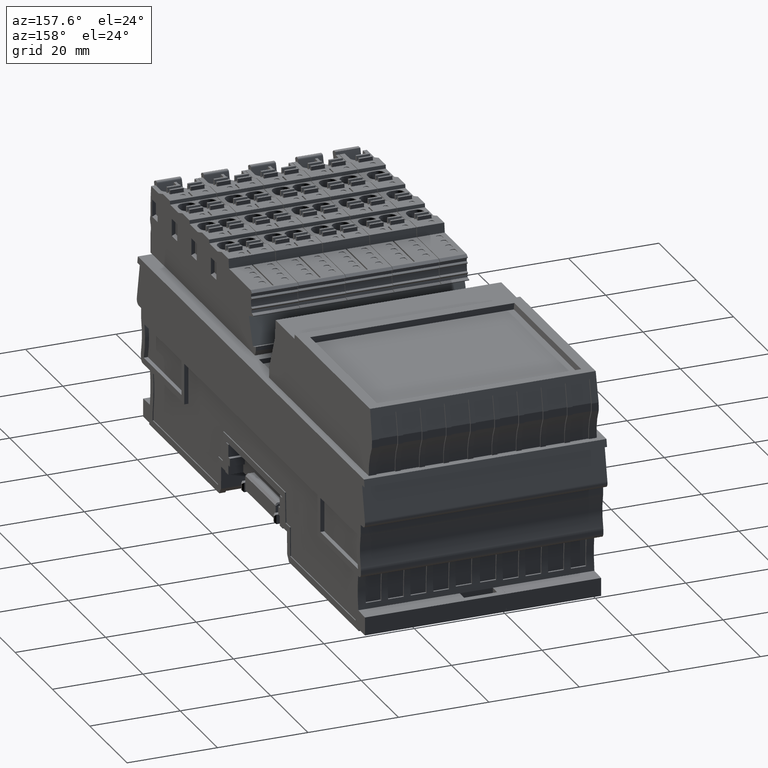
[diagram: clean part render]
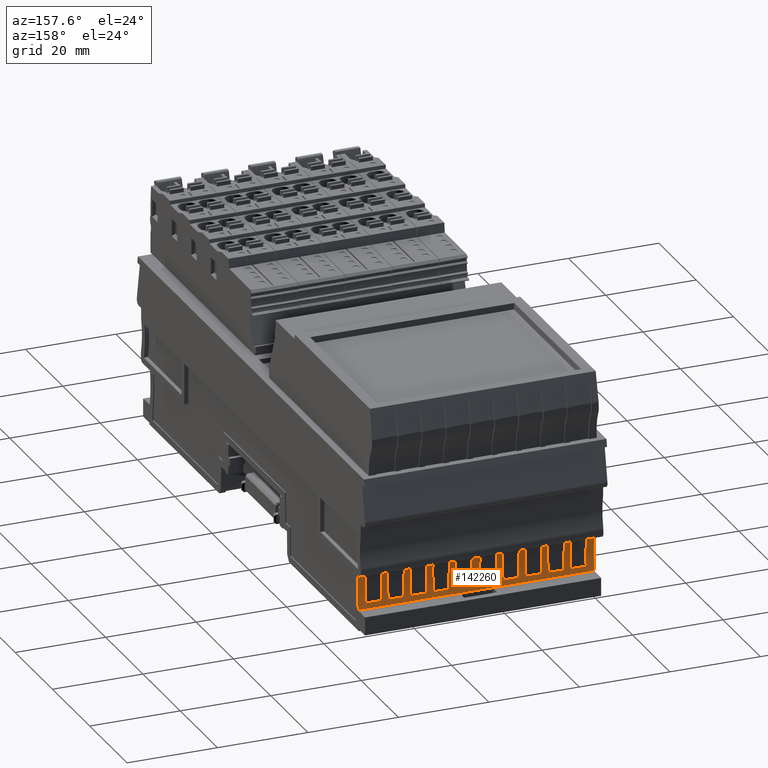
[diagram: same view with one face highlighted and labeled with its STEP entity id]
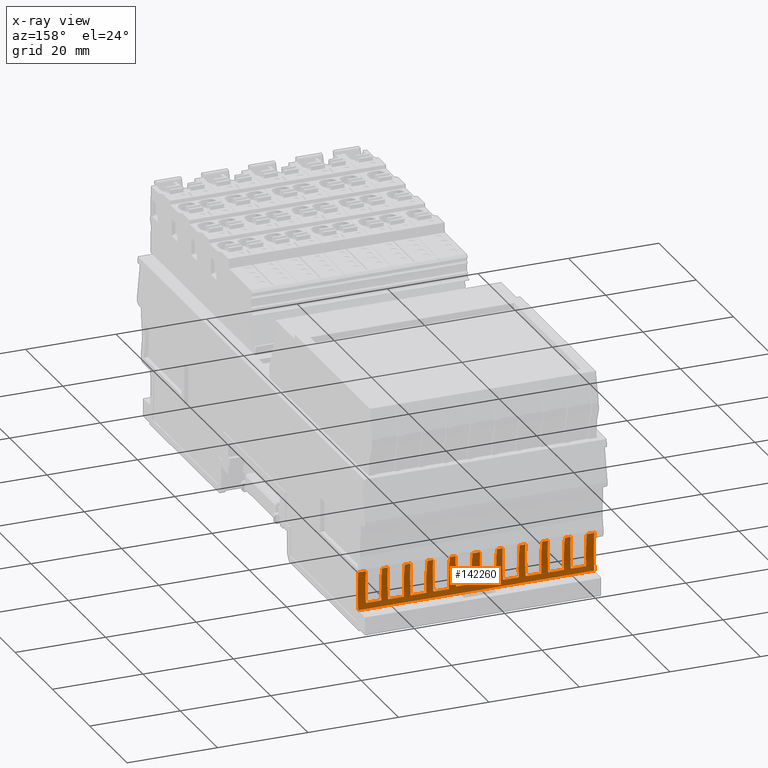
[diagram: x-ray of the same camera — body ghosted, the highlighted face saturated]
A machine part, auxiliary view. The second image highlights one B-rep face of the part: STEP entity #142260.
The next image is the same camera in x-ray: the body ghosted, the highlighted face saturated — about 0% of this face is hidden behind the body in this view.
In plain terms, the highlighted cylindrical surface (partial cylindrical patch) has radius 32 mm, axis along (1, -0, -0).
Its self-contained STEP definition (entity closure, byte-faithful):
#91180=CARTESIAN_POINT('',(110.903735656743,15.563936906881,
-34.0125851546365));
#91190=DIRECTION('',(-0.00212691339900759,0.0173223188362322,
-0.999847695156382));
#91200=DIRECTION('',(-0.121850787229782,0.992394981426756,
0.0174524064378229));
#91210=AXIS2_PLACEMENT_3D('',#91180,#91190,#91200);
#91220=ELLIPSE('',#91210,32.0048744974054,32.);
#91230=CARTESIAN_POINT('',(79.626375780575,8.80178050698401,
-34.0632048576358));
#91240=VERTEX_POINT('',#91230);
#91250=CARTESIAN_POINT('',(78.9062796824759,15.9674355746103,
-33.9375283727069));
#91260=VERTEX_POINT('',#91250);
#91270=EDGE_CURVE('',#91240,#91260,#91220,.T.);
#92640=CARTESIAN_POINT('',(79.5641304898053,9.09639116046415,
-27.5420316461985));
#92650=VERTEX_POINT('',#92640);
#92680=CARTESIAN_POINT('',(79.5641304899061,9.09639116048578,
-55.260002400555));
#92690=DIRECTION('',(-3.71422913355509E-12,-4.00157385418018E-13,1.));
#92700=VECTOR('',#92690,1.);
#92710=LINE('',#92680,#92700);
#92720=CARTESIAN_POINT('',(79.5641304897922,9.09639116046274,
-24.0125913893579));
#92730=VERTEX_POINT('',#92720);
#92740=EDGE_CURVE('',#92650,#92730,#92710,.T.);
#92980=CARTESIAN_POINT('',(110.903735656706,15.5639369068769,
-23.9899015279319));
#92990=DIRECTION('',(-0.00106349713636494,0.00866148922819657,
-0.999961923064169));
#93000=DIRECTION('',(0.121864701693652,-0.992508358684857,
-0.00872653549865132));
#93010=AXIS2_PLACEMENT_3D('',#92980,#92990,#93000);
#93020=ELLIPSE('',#93010,32.0012185083437,32.);
#93030=CARTESIAN_POINT('',(78.9062796824388,15.9674355746063,
-23.952375996911));
#93040=VERTEX_POINT('',#93030);
#93050=EDGE_CURVE('',#92730,#93040,#93020,.T.);
#93300=CARTESIAN_POINT('',(79.6263757806532,8.80178050699476,
-55.2600024005548));
#93310=DIRECTION('',(-3.71422913355509E-12,-4.00157385418018E-13,1.));
#93320=VECTOR('',#93310,1.);
#93330=LINE('',#93300,#93320);
#93340=CARTESIAN_POINT('',(79.6263757806073,8.8017805069837,
-42.5367951220103));
#93350=VERTEX_POINT('',#93340);
#93360=CARTESIAN_POINT('',(79.6263757805944,8.80178050698231,
-39.0632048576355));
#93370=VERTEX_POINT('',#93360);
#93380=EDGE_CURVE('',#93350,#93370,#93330,.T.);
#93770=CARTESIAN_POINT('',(110.903735656762,15.563936906883,
-39.0125851546362));
#93780=DIRECTION('',(-0.00212691339900759,0.0173223188362322,
-0.999847695156382));
#93790=DIRECTION('',(-0.121850787229782,0.992394981426756,
0.0174524064378229));
#93800=AXIS2_PLACEMENT_3D('',#93770,#93780,#93790);
#93810=ELLIPSE('',#93800,32.0048744974054,32.);
#93820=CARTESIAN_POINT('',(78.9062796824945,15.9674355746123,
-38.9375283727065));
#93830=VERTEX_POINT('',#93820);
#93840=EDGE_CURVE('',#93370,#93830,#93810,.T.);
#94460=CARTESIAN_POINT('',(78.9062796825326,15.9674355746164,
-49.1999999990493));
#94470=VERTEX_POINT('',#94460);
#94500=CARTESIAN_POINT('',(78.9062796825551,15.9674355746188,
-55.2600024005546));
#94510=DIRECTION('',(-3.71422913355509E-12,-4.00157385418018E-13,1.));
#94520=VECTOR('',#94510,1.);
#94530=LINE('',#94500,#94520);
#94540=CARTESIAN_POINT('',(78.9062796825263,15.9674355746157,
-47.5083678773095));
#94550=VERTEX_POINT('',#94540);
#94560=EDGE_CURVE('',#94470,#94550,#94530,.T.);
#94780=CARTESIAN_POINT('',(78.906279682513,15.9674355746143,
-43.9375283489985));
#94790=VERTEX_POINT('',#94780);
#94820=CARTESIAN_POINT('',(78.9062796825551,15.9674355746188,
-55.2600024005546));
#94830=DIRECTION('',(-3.71422913355509E-12,-4.00157385418018E-13,1.));
#94840=VECTOR('',#94830,1.);
#94850=LINE('',#94820,#94840);
#94860=CARTESIAN_POINT('',(78.9062796825083,15.9674355746138,
-42.6624716069432));
#94870=VERTEX_POINT('',#94860);
#94880=EDGE_CURVE('',#94790,#94870,#94850,.T.);
#95050=CARTESIAN_POINT('',(78.9062796825551,15.9674355746188,
-55.2600024005546));
#95060=DIRECTION('',(-3.71422913355509E-12,-4.00157385418018E-13,1.));
#95070=VECTOR('',#95060,1.);
#95080=LINE('',#95050,#95070);
#95090=CARTESIAN_POINT('',(78.9062796824897,15.9674355746118,
-37.6624716306536));
#95100=VERTEX_POINT('',#95090);
#95110=EDGE_CURVE('',#93830,#95100,#95080,.T.);
#95280=CARTESIAN_POINT('',(78.9062796825551,15.9674355746188,
-55.2600024005546));
#95290=DIRECTION('',(-3.71422913355509E-12,-4.00157385418018E-13,1.));
#95300=VECTOR('',#95290,1.);
#95310=LINE('',#95280,#95300);
#95320=CARTESIAN_POINT('',(78.9062796824712,15.9674355746098,
-32.6624716306533));
#95330=VERTEX_POINT('',#95320);
#95340=EDGE_CURVE('',#91260,#95330,#95310,.T.);
#95560=CARTESIAN_POINT('',(78.9062796824573,15.9674355746083,
-28.9375283493225));
#95570=VERTEX_POINT('',#95560);
#95600=CARTESIAN_POINT('',(78.9062796825551,15.9674355746188,
-55.2600024005546));
#95610=DIRECTION('',(-3.71422913355509E-12,-4.00157385418018E-13,1.));
#95620=VECTOR('',#95610,1.);
#95630=LINE('',#95600,#95620);
#95640=CARTESIAN_POINT('',(78.9062796824526,15.9674355746078,
-27.6624716035652));
#95650=VERTEX_POINT('',#95640);
#95660=EDGE_CURVE('',#95570,#95650,#95630,.T.);
#95760=CARTESIAN_POINT('',(78.9062796825551,15.9674355746188,
-55.2600024005546));
#95770=DIRECTION('',(-3.71422913355509E-12,-4.00157385418018E-13,1.));
#95780=VECTOR('',#95770,1.);
#95790=LINE('',#95760,#95780);
#95800=CARTESIAN_POINT('',(78.9062796824325,15.9674355746056,
-22.2476239827392));
#95810=VERTEX_POINT('',#95800);
#95820=EDGE_CURVE('',#93040,#95810,#95790,.T.);
#95950=CARTESIAN_POINT('',(78.9062796824187,15.9674355746041,
-18.5375283760858));
#95960=VERTEX_POINT('',#95950);
#95990=CARTESIAN_POINT('',(78.9062796825551,15.9674355746188,
-55.2600024005546));
#96000=DIRECTION('',(-3.71422913355509E-12,-4.00157385418018E-13,1.));
#96010=VECTOR('',#96000,1.);
#96020=LINE('',#95990,#96010);
#96030=CARTESIAN_POINT('',(78.906279682414,15.9674355746036,
-17.2624716303285));
#96040=VERTEX_POINT('',#96030);
#96050=EDGE_CURVE('',#95960,#96040,#96020,.T.);
#96270=CARTESIAN_POINT('',(78.9062796824001,15.9674355746021,
-13.5375283727072));
#96280=VERTEX_POINT('',#96270);
#96310=CARTESIAN_POINT('',(78.9062796825551,15.9674355746188,
-55.2600024005546));
#96320=DIRECTION('',(-3.71422913355509E-12,-4.00157385418018E-13,1.));
#96330=VECTOR('',#96320,1.);
#96340=LINE('',#96310,#96330);
#96350=CARTESIAN_POINT('',(78.9062796823954,15.9674355746016,
-12.262471630653));
#96360=VERTEX_POINT('',#96350);
#96370=EDGE_CURVE('',#96280,#96360,#96340,.T.);
#96590=CARTESIAN_POINT('',(78.9062796823816,15.9674355746001,
-8.53752837270756));
#96600=VERTEX_POINT('',#96590);
#96630=CARTESIAN_POINT('',(78.9062796825551,15.9674355746188,
-55.2600024005546));
#96640=DIRECTION('',(-3.71422913355509E-12,-4.00157385418018E-13,1.));
#96650=VECTOR('',#96640,1.);
#96660=LINE('',#96630,#96650);
#96670=CARTESIAN_POINT('',(78.9062796823768,15.9674355745996,
-7.26247163065266));
#96680=VERTEX_POINT('',#96670);
#96690=EDGE_CURVE('',#96600,#96680,#96660,.T.);
#96910=CARTESIAN_POINT('',(78.906279682363,15.9674355745981,
-3.53752837270753));
#96920=VERTEX_POINT('',#96910);
#96950=CARTESIAN_POINT('',(78.9062796825551,15.9674355746188,
-55.2600024005546));
#96960=DIRECTION('',(-3.71422913355509E-12,-4.00157385418018E-13,1.));
#96970=VECTOR('',#96960,1.);
#96980=LINE('',#96950,#96970);
#96990=CARTESIAN_POINT('',(78.9062796823582,15.9674355745976,
-2.26247163065268));
#97000=VERTEX_POINT('',#96990);
#97010=EDGE_CURVE('',#96920,#97000,#96980,.T.);
#97230=CARTESIAN_POINT('',(78.906279682345,15.9674355745962,
1.30836789901522));
#97240=VERTEX_POINT('',#97230);
#97270=CARTESIAN_POINT('',(78.9062796825551,15.9674355746188,
-55.2600024005546));
#97280=DIRECTION('',(-3.71422913355509E-12,-4.00157385418018E-13,1.));
#97290=VECTOR('',#97280,1.);
#97300=LINE('',#97270,#97290);
#97310=CARTESIAN_POINT('',(78.9062796823387,15.9674355745955,
3.0000000005265));
#97320=VERTEX_POINT('',#97310);
#97330=EDGE_CURVE('',#97240,#97320,#97300,.T.);
#99440=CARTESIAN_POINT('',(79.9221312282666,7.5551800099699,
-49.1999999990489));
#99450=VERTEX_POINT('',#99440);
#99480=CARTESIAN_POINT('',(110.903735656799,15.563936906887,
-49.1999999989305));
#99490=DIRECTION('',(-3.71422913355509E-12,-4.00157385418018E-13,1.));
#99500=DIRECTION('',(0.992546151641291,0.121869343405398,
3.73531075064378E-12));
#99510=AXIS2_PLACEMENT_3D('',#99480,#99490,#99500);
#99520=CIRCLE('',#99510,32.);
#99530=EDGE_CURVE('',#94470,#99450,#99520,.T.);
#112050=CARTESIAN_POINT('',(79.9246703412718,7.54536395519617,
-26.7576003876963));
#112060=VERTEX_POINT('',#112050);
#121020=CARTESIAN_POINT('',(79.9246703413777,7.54536395520762,
-55.2600024005542));
#121030=DIRECTION('',(-3.71422913355509E-12,-4.00157385418018E-13,1.));
#121040=VECTOR('',#121030,1.);
#121050=LINE('',#121020,#121040);
#121060=CARTESIAN_POINT('',(79.9246703412447,7.54536395519325,
-19.45985202437));
#121070=VERTEX_POINT('',#121060);
#121080=EDGE_CURVE('',#112060,#121070,#121050,.T.);
#129660=CARTESIAN_POINT('',(110.903735656605,15.5639369068662,
3.00000000064519));
#129670=DIRECTION('',(-3.71422913355509E-12,-4.00157385418018E-13,1.));
#129680=DIRECTION('',(0.992546151641291,0.121869343405398,
3.73531075064378E-12));
#129690=AXIS2_PLACEMENT_3D('',#129660,#129670,#129680);
#129700=CIRCLE('',#129690,32.);
#129710=CARTESIAN_POINT('',(79.9221312280727,7.55518000994902,
3.0000000005269));
#129720=VERTEX_POINT('',#129710);
#129730=EDGE_CURVE('',#97320,#129720,#129700,.T.);
#136180=CARTESIAN_POINT('',(110.903735656722,15.5639369068787,
-28.3080336572795));
#136190=DIRECTION('',(0.00106349717880068,-0.0086614892194875,
-0.999961923064199));
#136200=DIRECTION('',(-0.121864705754972,0.99250835818622,
-0.00872653549517878));
#136210=AXIS2_PLACEMENT_3D('',#136180,#136190,#136200);
#136220=ELLIPSE('',#136210,32.0012185083427,32.);
#136230=CARTESIAN_POINT('',(79.9246703412774,7.54536395519678,
-28.271525632554));
#136240=VERTEX_POINT('',#136230);
#136250=CARTESIAN_POINT('',(79.9221312281888,7.55518000996153,
-28.2716133578864));
#136260=VERTEX_POINT('',#136250);
#136270=EDGE_CURVE('',#136240,#136260,#136220,.T.);
#138670=CARTESIAN_POINT('',(110.903735656793,15.5639369068863,
-47.4708423460513));
#138680=DIRECTION('',(-0.00106349714379756,0.00866148922672503,
0.999961923064174));
#138690=DIRECTION('',(-0.121864701703184,0.992508358683691,
-0.00872653549809655));
#138700=AXIS2_PLACEMENT_3D('',#138670,#138680,#138690);
#138710=ELLIPSE('',#138700,32.0012185083435,32.);
#138720=CARTESIAN_POINT('',(79.626375780626,8.80178050698314,
-47.4455344204897));
#138730=VERTEX_POINT('',#138720);
#138740=EDGE_CURVE('',#94550,#138730,#138710,.T.);
#139060=CARTESIAN_POINT('',(79.6263757806551,8.80178050698619,
-55.2600024005548));
#139070=DIRECTION('',(-3.71422913355509E-12,-4.00157385418018E-13,1.));
#139080=VECTOR('',#139070,1.);
#139090=LINE('',#139060,#139080);
#139100=CARTESIAN_POINT('',(79.6263757806138,8.80178050698051,
-44.0632048339435));
#139110=VERTEX_POINT('',#139100);
#139120=EDGE_CURVE('',#138730,#139110,#139090,.T.);
#139440=CARTESIAN_POINT('',(110.90373565678,15.563936906885,
-44.0125851269903));
#139450=DIRECTION('',(0.00212691327577444,-0.017322318850844,
0.999847695156391));
#139460=DIRECTION('',(-0.121850780173348,0.992394982293186,
0.0174524064373075));
#139470=AXIS2_PLACEMENT_3D('',#139440,#139450,#139460);
#139480=ELLIPSE('',#139470,32.0048744974051,32.);
#139490=EDGE_CURVE('',#94790,#139110,#139480,.T.);
#139880=CARTESIAN_POINT('',(110.903735656822,15.5639369068895,
-55.260002400436));
#139890=DIRECTION('',(-3.71422913355509E-12,-4.00157385418018E-13,1.));
#139900=DIRECTION('',(0.992546151641291,0.121869343405398,
3.73531075064378E-12));
#139910=AXIS2_PLACEMENT_3D('',#139880,#139890,#139900);
#139920=CYLINDRICAL_SURFACE('',#139910,32.);
#139930=CARTESIAN_POINT('',(79.9221312282891,7.55518000997234,
-55.2600024005542));
#139940=DIRECTION('',(-3.71422913355509E-12,-4.00157385418018E-13,1.));
#139950=VECTOR('',#139940,1.);
#139960=LINE('',#139930,#139950);
#139970=CARTESIAN_POINT('',(79.9221312281504,7.55518000995739,
-17.9283865902764));
#139980=VERTEX_POINT('',#139970);
#139990=EDGE_CURVE('',#139980,#129720,#139960,.T.);
#140000=ORIENTED_EDGE('',*,*,#139990,.F.);
#140010=ORIENTED_EDGE('',*,*,#129730,.T.);
#140020=ORIENTED_EDGE('',*,*,#97330,.T.);
#140030=CARTESIAN_POINT('',(110.903735656612,15.5639369068668,
1.27084236726732));
#140040=DIRECTION('',(-0.00106349715910504,0.00866148922641938,
-0.99996192306416));
#140050=DIRECTION('',(-0.121864704285362,0.992508358366626,
0.0087265354996587));
#140060=AXIS2_PLACEMENT_3D('',#140030,#140040,#140050);
#140070=ELLIPSE('',#140060,32.001218508344,32.);
#140080=CARTESIAN_POINT('',(79.6263757804479,8.80178050695125,
1.24553444218646));
#140090=VERTEX_POINT('',#140080);
#140100=EDGE_CURVE('',#140090,#97240,#140070,.T.);
#140110=ORIENTED_EDGE('',*,*,#140100,.T.);
#140120=CARTESIAN_POINT('',(79.6263757806578,8.80178050697386,
-55.2600024005548));
#140130=DIRECTION('',(-3.71422913355509E-12,-4.00157385418018E-13,1.));
#140140=VECTOR('',#140130,1.);
#140150=LINE('',#140120,#140140);
#140160=CARTESIAN_POINT('',(79.6263757804604,8.80178050695259,
-2.13679514570349));
#140170=VERTEX_POINT('',#140160);
#140180=EDGE_CURVE('',#140170,#140090,#140150,.T.);
#140190=ORIENTED_EDGE('',*,*,#140180,.T.);
#140200=CARTESIAN_POINT('',(110.903735656625,15.5639369068682,
-2.18741485419954));
#140210=DIRECTION('',(-0.00212691322762619,0.0173223188562403,
0.9998476951564));
#140220=DIRECTION('',(-0.121850776993563,0.992394982683624,
-0.0174524064367958));
#140230=AXIS2_PLACEMENT_3D('',#140200,#140210,#140220);
#140240=ELLIPSE('',#140230,32.0048744974047,32.);
#140250=EDGE_CURVE('',#97000,#140170,#140240,.T.);
#140260=ORIENTED_EDGE('',*,*,#140250,.T.);
#140270=ORIENTED_EDGE('',*,*,#97010,.T.);
#140280=CARTESIAN_POINT('',(110.90373565663,15.5639369068688,
-3.6125851546372));
#140290=DIRECTION('',(-0.00212691339900759,0.0173223188362322,
-0.999847695156382));
#140300=DIRECTION('',(-0.121850787229782,0.992394981426756,
0.0174524064378229));
#140310=AXIS2_PLACEMENT_3D('',#140280,#140290,#140300);
#140320=ELLIPSE('',#140310,32.0048744974054,32.);
#140330=CARTESIAN_POINT('',(79.626375780464,8.80178050696276,
-3.66320485763658));
#140340=VERTEX_POINT('',#140330);
#140350=EDGE_CURVE('',#140340,#96920,#140320,.T.);
#140360=ORIENTED_EDGE('',*,*,#140350,.T.);
#140370=CARTESIAN_POINT('',(79.6263757806578,8.80178050697355,
-55.2600024005548));
#140380=DIRECTION('',(-3.71422913355509E-12,-4.00157385418018E-13,1.));
#140390=VECTOR('',#140380,1.);
#140400=LINE('',#140370,#140390);
#140410=CARTESIAN_POINT('',(79.6263757804769,8.80178050696416,
-7.13679514570364));
#140420=VERTEX_POINT('',#140410);
#140430=EDGE_CURVE('',#140420,#140340,#140400,.T.);
#140440=ORIENTED_EDGE('',*,*,#140430,.T.);
#140450=CARTESIAN_POINT('',(110.903735656643,15.5639369068702,
-7.18741485419952));
#140460=DIRECTION('',(-0.00212691322762619,0.0173223188562403,
0.9998476951564));
#140470=DIRECTION('',(-0.121850776993563,0.992394982683624,
-0.0174524064367958));
#140480=AXIS2_PLACEMENT_3D('',#140450,#140460,#140470);
#140490=ELLIPSE('',#140480,32.0048744974047,32.);
#140500=EDGE_CURVE('',#96680,#140420,#140490,.T.);
#140510=ORIENTED_EDGE('',*,*,#140500,.T.);
#140520=ORIENTED_EDGE('',*,*,#96690,.T.);
#140530=CARTESIAN_POINT('',(110.903735656649,15.5639369068708,
-8.61258515463721));
#140540=DIRECTION('',(-0.00212691339900759,0.0173223188362322,
-0.999847695156382));
#140550=DIRECTION('',(-0.121850787229782,0.992394981426756,
0.0174524064378229));
#140560=AXIS2_PLACEMENT_3D('',#140530,#140540,#140550);
#140570=ELLIPSE('',#140560,32.0048744974054,32.);
#140580=CARTESIAN_POINT('',(79.6263757804826,8.80178050696477,
-8.66320485763673));
#140590=VERTEX_POINT('',#140580);
#140600=EDGE_CURVE('',#140590,#96600,#140570,.T.);
#140610=ORIENTED_EDGE('',*,*,#140600,.T.);
#140620=CARTESIAN_POINT('',(79.6263757806572,8.80178050697633,
-55.2600024005548));
#140630=DIRECTION('',(-3.71422913355509E-12,-4.00157385418018E-13,1.));
#140640=VECTOR('',#140630,1.);
#140650=LINE('',#140620,#140640);
#140660=CARTESIAN_POINT('',(79.6263757804955,8.80178050696616,
-12.1367951457039));
#140670=VERTEX_POINT('',#140660);
#140680=EDGE_CURVE('',#140670,#140590,#140650,.T.);
#140690=ORIENTED_EDGE('',*,*,#140680,.T.);
#140700=CARTESIAN_POINT('',(110.903735656662,15.5639369068722,
-12.1874148541999));
#140710=DIRECTION('',(-0.00212691322762619,0.0173223188562403,
0.9998476951564));
#140720=DIRECTION('',(-0.121850776993563,0.992394982683624,
-0.0174524064367958));
#140730=AXIS2_PLACEMENT_3D('',#140700,#140710,#140720);
#140740=ELLIPSE('',#140730,32.0048744974047,32.);
#140750=EDGE_CURVE('',#96360,#140670,#140740,.T.);
#140760=ORIENTED_EDGE('',*,*,#140750,.T.);
#140770=ORIENTED_EDGE('',*,*,#96370,.T.);
#140780=CARTESIAN_POINT('',(110.903735656667,15.5639369068728,
-13.6125851546369));
#140790=DIRECTION('',(-0.00212691339900759,0.0173223188362322,
-0.999847695156382));
#140800=DIRECTION('',(-0.121850787229782,0.992394981426756,
0.0174524064378229));
#140810=AXIS2_PLACEMENT_3D('',#140780,#140790,#140800);
#140820=ELLIPSE('',#140810,32.0048744974054,32.);
#140830=CARTESIAN_POINT('',(79.6263757805012,8.80178050696677,
-13.6632048576363));
#140840=VERTEX_POINT('',#140830);
#140850=EDGE_CURVE('',#140840,#96280,#140820,.T.);
#140860=ORIENTED_EDGE('',*,*,#140850,.T.);
#140870=CARTESIAN_POINT('',(79.6263757806566,8.80178050697914,
-55.2600024005548));
#140880=DIRECTION('',(-3.71422913355509E-12,-4.00157385418018E-13,1.));
#140890=VECTOR('',#140880,1.);
#140900=LINE('',#140870,#140890);
#140910=CARTESIAN_POINT('',(79.6263757805141,8.80178050696816,
-17.1367951453773));
#140920=VERTEX_POINT('',#140910);
#140930=EDGE_CURVE('',#140920,#140840,#140900,.T.);
#140940=ORIENTED_EDGE('',*,*,#140930,.T.);
#140950=CARTESIAN_POINT('',(110.90373565668,15.5639369068742,
-17.187414853512));
#140960=DIRECTION('',(-0.00212691323899062,0.0173223188553922,
0.99984769515639));
#140970=DIRECTION('',(-0.121850777640879,0.992394982604134,
-0.017452406437339));
#140980=AXIS2_PLACEMENT_3D('',#140950,#140960,#140970);
#140990=ELLIPSE('',#140980,32.004874497405,32.);
#141000=EDGE_CURVE('',#96040,#140920,#140990,.T.);
#141010=ORIENTED_EDGE('',*,*,#141000,.T.);
#141020=ORIENTED_EDGE('',*,*,#96050,.T.);
#141030=CARTESIAN_POINT('',(110.903735656686,15.5639369068748,
-18.6125851580131));
#141040=DIRECTION('',(0.00212691339894258,-0.0173223188356557,
0.999847695156392));
#141050=DIRECTION('',(-0.121850787230081,0.99239498142673,
0.0174524064372428));
#141060=AXIS2_PLACEMENT_3D('',#141030,#141040,#141050);
#141070=ELLIPSE('',#141060,32.004874497405,32.);
#141080=CARTESIAN_POINT('',(79.5641304897723,9.09639116046059,
-18.6579683334471));
#141090=VERTEX_POINT('',#141080);
#141100=EDGE_CURVE('',#95960,#141090,#141070,.T.);
#141110=ORIENTED_EDGE('',*,*,#141100,.F.);
#141120=CARTESIAN_POINT('',(79.5641304899084,9.09639116047439,
-55.260002400555));
#141130=DIRECTION('',(-3.71422913355509E-12,-4.00157385418018E-13,1.));
#141140=VECTOR('',#141130,1.);
#141150=LINE('',#141120,#141140);
#141160=CARTESIAN_POINT('',(79.5641304897856,9.09639116046115,
-22.1874085902871));
#141170=VERTEX_POINT('',#141160);
#141180=EDGE_CURVE('',#141170,#141090,#141150,.T.);
#141190=ORIENTED_EDGE('',*,*,#141180,.T.);
#141200=CARTESIAN_POINT('',(110.903735656699,15.5639369068762,
-22.2100984532571));
#141210=DIRECTION('',(0.00106349708820595,-0.00866148923355081,
-0.999961923064174));
#141220=DIRECTION('',(0.121864695333001,-0.992508359465851,
0.00872653549809655));
#141230=AXIS2_PLACEMENT_3D('',#141200,#141210,#141220);
#141240=ELLIPSE('',#141230,32.0012185083435,32.);
#141250=EDGE_CURVE('',#141170,#95810,#141240,.T.);
#141260=ORIENTED_EDGE('',*,*,#141250,.F.);
#141270=ORIENTED_EDGE('',*,*,#95820,.T.);
#141280=ORIENTED_EDGE('',*,*,#93050,.T.);
#141290=ORIENTED_EDGE('',*,*,#92740,.T.);
#141300=CARTESIAN_POINT('',(110.903735656719,15.5639369068784,
-27.5874148231765));
#141310=DIRECTION('',(-0.00212691335079434,0.017322318841052,
0.999847695156401));
#141320=DIRECTION('',(-0.121850784050386,0.992394981817156,
-0.017452406436731));
#141330=AXIS2_PLACEMENT_3D('',#141300,#141310,#141320);
#141340=ELLIPSE('',#141330,32.0048744974047,32.);
#141350=EDGE_CURVE('',#95650,#92650,#141340,.T.);
#141360=ORIENTED_EDGE('',*,*,#141350,.T.);
#141370=ORIENTED_EDGE('',*,*,#95660,.T.);
#141380=CARTESIAN_POINT('',(110.903735656724,15.563936906879,
-29.0125851276777));
#141390=DIRECTION('',(0.00212691328713886,-0.0173223188499959,
0.999847695156382));
#141400=DIRECTION('',(-0.121850780820619,0.992394982213702,
0.0174524064378507));
#141410=AXIS2_PLACEMENT_3D('',#141380,#141390,#141400);
#141420=ELLIPSE('',#141410,32.0048744974054,32.);
#141430=CARTESIAN_POINT('',(79.6263757805572,8.80178050697831,
-29.0632048342696));
#141440=VERTEX_POINT('',#141430);
#141450=EDGE_CURVE('',#95570,#141440,#141420,.T.);
#141460=ORIENTED_EDGE('',*,*,#141450,.F.);
#141470=CARTESIAN_POINT('',(79.626375780654,8.8017805069914,
-55.2600024005548));
#141480=DIRECTION('',(-3.71422913355509E-12,-4.00157385418018E-13,1.));
#141490=VECTOR('',#141480,1.);
#141500=LINE('',#141470,#141490);
#141510=CARTESIAN_POINT('',(79.6263757805701,8.8017805069797,
-32.5367951457044));
#141520=VERTEX_POINT('',#141510);
#141530=EDGE_CURVE('',#141520,#141440,#141500,.T.);
#141540=ORIENTED_EDGE('',*,*,#141530,.T.);
#141550=CARTESIAN_POINT('',(110.903735656738,15.5639369068804,
-32.5874148542002));
#141560=DIRECTION('',(-0.00212691322762619,0.0173223188562403,
0.9998476951564));
#141570=DIRECTION('',(-0.121850776993563,0.992394982683624,
-0.0174524064367958));
#141580=AXIS2_PLACEMENT_3D('',#141550,#141560,#141570);
#141590=ELLIPSE('',#141580,32.0048744974047,32.);
#141600=EDGE_CURVE('',#95330,#141520,#141590,.T.);
#141610=ORIENTED_EDGE('',*,*,#141600,.T.);
#141620=ORIENTED_EDGE('',*,*,#95340,.T.);
#141630=ORIENTED_EDGE('',*,*,#91270,.T.);
#141640=CARTESIAN_POINT('',(79.6263757806536,8.80178050699308,
-55.2600024005548));
#141650=DIRECTION('',(-3.71422913355509E-12,-4.00157385418018E-13,1.));
#141660=VECTOR('',#141650,1.);
#141670=LINE('',#141640,#141660);
#141680=CARTESIAN_POINT('',(79.6263757805876,8.80178050698656,
-37.5367951457048));
#141690=VERTEX_POINT('',#141680);
#141700=EDGE_CURVE('',#141690,#91240,#141670,.T.);
#141710=ORIENTED_EDGE('',*,*,#141700,.T.);
#141720=CARTESIAN_POINT('',(110.903735656756,15.5639369068824,
-37.5874148542005));
#141730=DIRECTION('',(-0.00212691322762619,0.0173223188562403,
0.9998476951564));
#141740=DIRECTION('',(-0.121850776993563,0.992394982683624,
-0.0174524064367958));
#141750=AXIS2_PLACEMENT_3D('',#141720,#141730,#141740);
#141760=ELLIPSE('',#141750,32.0048744974047,32.);
#141770=EDGE_CURVE('',#95100,#141690,#141760,.T.);
#141780=ORIENTED_EDGE('',*,*,#141770,.T.);
#141790=ORIENTED_EDGE('',*,*,#95110,.T.);
#141800=ORIENTED_EDGE('',*,*,#93840,.T.);
#141810=ORIENTED_EDGE('',*,*,#93380,.T.);
#141820=CARTESIAN_POINT('',(110.903735656775,15.5639369068844,
-42.5874148265522));
#141830=DIRECTION('',(0.00212691335085935,-0.0173223188416285,
-0.999847695156391));
#141840=DIRECTION('',(-0.121850784050132,0.992394981817177,
-0.0174524064373112));
#141850=AXIS2_PLACEMENT_3D('',#141820,#141830,#141840);
#141860=ELLIPSE('',#141850,32.004874497405,32.);
#141870=EDGE_CURVE('',#93350,#94870,#141860,.T.);
#141880=ORIENTED_EDGE('',*,*,#141870,.F.);
#141890=ORIENTED_EDGE('',*,*,#94880,.T.);
#141900=ORIENTED_EDGE('',*,*,#139490,.F.);
#141910=ORIENTED_EDGE('',*,*,#139120,.T.);
#141920=ORIENTED_EDGE('',*,*,#138740,.T.);
#141930=ORIENTED_EDGE('',*,*,#94560,.T.);
#141940=ORIENTED_EDGE('',*,*,#99530,.F.);
#141950=CARTESIAN_POINT('',(79.9221312282891,7.55518000997234,
-55.2600024005542));
#141960=DIRECTION('',(-3.71422913355509E-12,-4.00157385418018E-13,1.));
#141970=VECTOR('',#141960,1.);
#141980=LINE('',#141950,#141970);
#141990=EDGE_CURVE('',#99450,#136260,#141980,.T.);
#142000=ORIENTED_EDGE('',*,*,#141990,.F.);
#142010=ORIENTED_EDGE('',*,*,#136270,.T.);
#142020=CARTESIAN_POINT('',(79.9246703413777,7.54536395520759,
-55.2600024005542));
#142030=DIRECTION('',(-3.71422913355509E-12,-4.00157385418018E-13,1.));
#142040=VECTOR('',#142030,1.);
#142050=LINE('',#142020,#142040);
#142060=EDGE_CURVE('',#136240,#112060,#142050,.T.);
#142070=ORIENTED_EDGE('',*,*,#142060,.F.);
#142080=ORIENTED_EDGE('',*,*,#121080,.F.);
#142090=CARTESIAN_POINT('',(79.9246703413777,7.54536395520759,
-55.2600024005542));
#142100=DIRECTION('',(-3.71422913355509E-12,-4.00157385418018E-13,1.));
#142110=VECTOR('',#142100,1.);
#142120=LINE('',#142090,#142110);
#142130=CARTESIAN_POINT('',(79.924670341239,7.54536395519264,
-17.9284743156088));
#142140=VERTEX_POINT('',#142130);
#142150=EDGE_CURVE('',#121070,#142140,#142120,.T.);
#142160=ORIENTED_EDGE('',*,*,#142150,.F.);
#142170=CARTESIAN_POINT('',(110.903735656683,15.5639369068745,
-17.8919662894378));
#142180=DIRECTION('',(0.0010634971351942,-0.00866148923128,
0.999961923064144));
#142190=DIRECTION('',(-0.121864701518746,0.992508358706307,
0.00872653550156909));
#142200=AXIS2_PLACEMENT_3D('',#142170,#142180,#142190);
#142210=ELLIPSE('',#142200,32.0012185083445,32.);
#142220=EDGE_CURVE('',#139980,#142140,#142210,.T.);
#142230=ORIENTED_EDGE('',*,*,#142220,.T.);
#142240=EDGE_LOOP('',(#142230,#142160,#142080,#142070,#142010,#142000,
#141940,#141930,#141920,#141910,#141900,#141890,#141880,#141810,#141800,
#141790,#141780,#141710,#141630,#141620,#141610,#141540,#141460,#141370,
#141360,#141290,#141280,#141270,#141260,#141190,#141110,#141020,#141010,
#140940,#140860,#140770,#140760,#140690,#140610,#140520,#140510,#140440,
#140360,#140270,#140260,#140190,#140110,#140020,#140010,#140000));
#142250=FACE_OUTER_BOUND('',#142240,.T.);
#142260=ADVANCED_FACE('',(#142250),#139920,.F.);